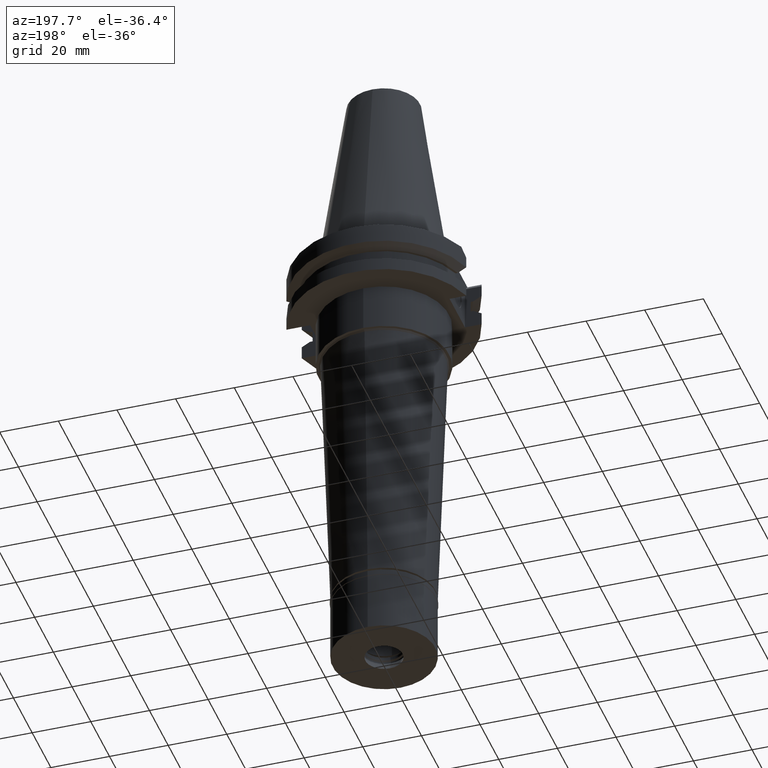
[diagram: clean part render]
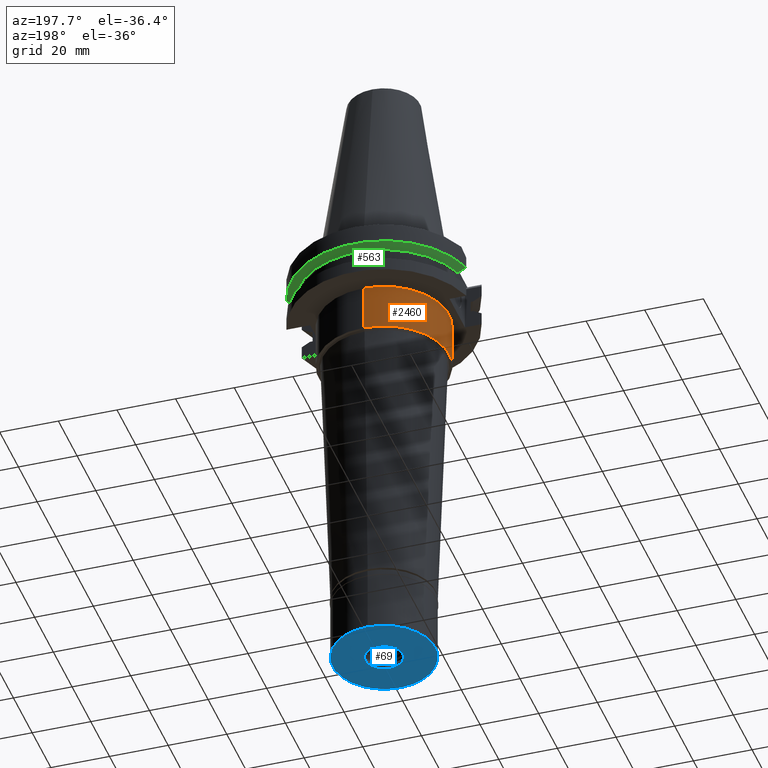
[diagram: same view with three faces highlighted in distinct colors, each labeled with its STEP entity id]
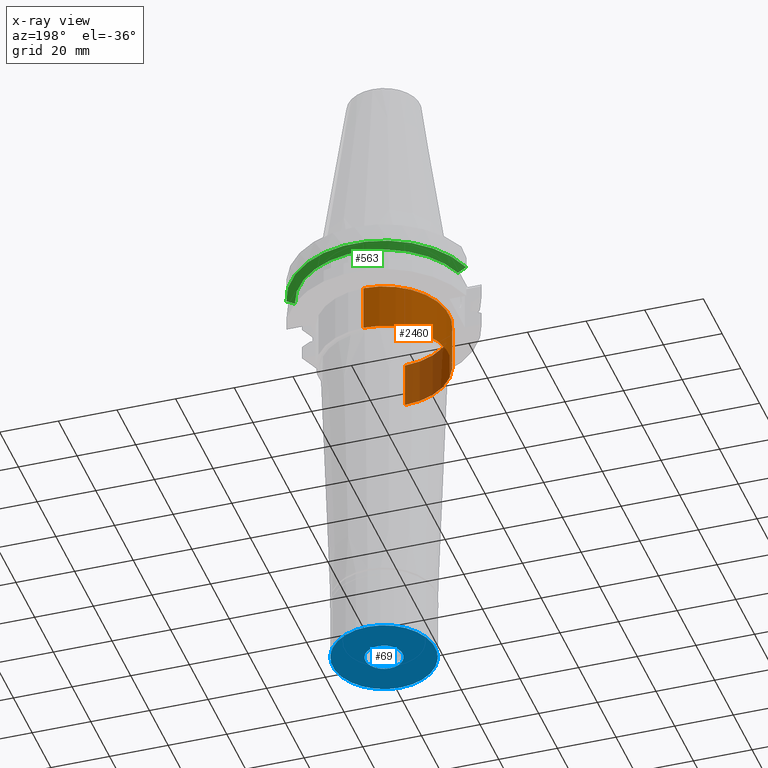
[diagram: x-ray of the same camera — body ghosted, the three highlighted faces saturated]
A machine part, auxiliary view with three faces highlighted in distinct colors.
The next image is the same camera in x-ray (body ghosted, the three faces saturated) — at least one of them is partly hidden behind the body in this view.
Their STEP definitions:

[orange] entity #2460 — the highlighted cylindrical surface (partial cylindrical patch) has radius 22.225 mm, axis along (0, 0, -1).
#256 = CIRCLE ( 'NONE', #3361, 22.22500000000000142 ) ;
#300 = AXIS2_PLACEMENT_3D ( 'NONE', #2525, #2227, #1718 ) ;
#408 = ORIENTED_EDGE ( 'NONE', *, *, #1648, .T. ) ;
#440 = LINE ( 'NONE', #1746, #746 ) ;
#492 = VERTEX_POINT ( 'NONE', #1219 ) ;
#582 = CIRCLE ( 'NONE', #300, 22.22500000000000142 ) ;
#593 = DIRECTION ( 'NONE',  ( 0.0000000000000000000, -1.000000000000000000, 0.0000000000000000000 ) ) ;
#596 = DIRECTION ( 'NONE',  ( 0.0000000000000000000, 1.000000000000000000, 0.0000000000000000000 ) ) ;
#726 = DIRECTION ( 'NONE',  ( 0.0000000000000000000, 0.0000000000000000000, -1.000000000000000000 ) ) ;
#746 = VECTOR ( 'NONE', #1485, 1000.000000000000000 ) ;
#850 = DIRECTION ( 'NONE',  ( 0.0000000000000000000, 0.0000000000000000000, 1.000000000000000000 ) ) ;
#897 = CARTESIAN_POINT ( 'NONE',  ( 0.0000000000000000000, 22.22500000000000142, -35.00000000000000000 ) ) ;
#984 = ORIENTED_EDGE ( 'NONE', *, *, #2041, .T. ) ;
#1120 = CARTESIAN_POINT ( 'NONE',  ( 0.0000000000000000000, 22.22500000000000142, -19.05000000000000071 ) ) ;
#1121 = EDGE_CURVE ( 'NONE', #1448, #2527, #582, .T. ) ;
#1219 = CARTESIAN_POINT ( 'NONE',  ( 0.0000000000000000000, -22.22500000000000142, -35.00000000000000000 ) ) ;
#1356 = VECTOR ( 'NONE', #726, 1000.000000000000000 ) ;
#1448 = VERTEX_POINT ( 'NONE', #1923 ) ;
#1485 = DIRECTION ( 'NONE',  ( 0.0000000000000000000, 0.0000000000000000000, -1.000000000000000000 ) ) ;
#1493 = LINE ( 'NONE', #3041, #1356 ) ;
#1539 = EDGE_LOOP ( 'NONE', ( #984, #2956, #2772, #408 ) ) ;
#1648 = EDGE_CURVE ( 'NONE', #2527, #2294, #440, .T. ) ;
#1692 = CARTESIAN_POINT ( 'NONE',  ( 0.0000000000000000000, 2.191474830903999739E-14, 78.94750000000000512 ) ) ;
#1718 = DIRECTION ( 'NONE',  ( 0.0000000000000000000, -1.000000000000000000, 0.0000000000000000000 ) ) ;
#1746 = CARTESIAN_POINT ( 'NONE',  ( 0.0000000000000000000, 22.22500000000000142, -19.05000000000000071 ) ) ;
#1923 = CARTESIAN_POINT ( 'NONE',  ( 0.0000000000000000000, -22.22500000000000142, -19.05000000000000071 ) ) ;
#2041 = EDGE_CURVE ( 'NONE', #2294, #492, #256, .T. ) ;
#2227 = DIRECTION ( 'NONE',  ( 0.0000000000000000000, 0.0000000000000000000, -1.000000000000000000 ) ) ;
#2294 = VERTEX_POINT ( 'NONE', #897 ) ;
#2426 = CARTESIAN_POINT ( 'NONE',  ( 0.0000000000000000000, 2.191474830903999739E-14, -35.00000000000000000 ) ) ;
#2460 = ADVANCED_FACE ( 'NONE', ( #2903 ), #2688, .T. ) ;
#2525 = CARTESIAN_POINT ( 'NONE',  ( 0.0000000000000000000, 2.191474830903999739E-14, -19.05000000000000071 ) ) ;
#2527 = VERTEX_POINT ( 'NONE', #1120 ) ;
#2678 = EDGE_CURVE ( 'NONE', #1448, #492, #1493, .T. ) ;
#2688 = CYLINDRICAL_SURFACE ( 'NONE', #2967, 22.22500000000000142 ) ;
#2772 = ORIENTED_EDGE ( 'NONE', *, *, #1121, .T. ) ;
#2903 = FACE_OUTER_BOUND ( 'NONE', #1539, .T. ) ;
#2956 = ORIENTED_EDGE ( 'NONE', *, *, #2678, .F. ) ;
#2958 = DIRECTION ( 'NONE',  ( 0.0000000000000000000, 0.0000000000000000000, -1.000000000000000000 ) ) ;
#2967 = AXIS2_PLACEMENT_3D ( 'NONE', #1692, #2958, #593 ) ;
#3041 = CARTESIAN_POINT ( 'NONE',  ( 0.0000000000000000000, -22.22500000000000142, -19.05000000000000071 ) ) ;
#3361 = AXIS2_PLACEMENT_3D ( 'NONE', #2426, #850, #596 ) ;

[blue] entity #69 — the highlighted planar face has unit normal (0, 0, -1).
#69 = ADVANCED_FACE ( 'NONE', ( #2020, #3035 ), #2775, .T. ) ;
#159 = CARTESIAN_POINT ( 'NONE',  ( 0.0000000000000000000, 0.0000000000000000000, -22.50000000000000000 ) ) ;
#274 = ORIENTED_EDGE ( 'NONE', *, *, #2622, .F. ) ;
#280 = VERTEX_POINT ( 'NONE', #2906 ) ;
#310 = EDGE_CURVE ( 'NONE', #3329, #1396, #2577, .T. ) ;
#405 = DIRECTION ( 'NONE',  ( 0.0000000000000000000, -1.000000000000000000, 0.0000000000000000000 ) ) ;
#424 = CIRCLE ( 'NONE', #1078, 17.50000000000000000 ) ;
#489 = ORIENTED_EDGE ( 'NONE', *, *, #2243, .F. ) ;
#544 = DIRECTION ( 'NONE',  ( 0.0000000000000000000, -1.000000000000000000, 0.0000000000000000000 ) ) ;
#719 = CARTESIAN_POINT ( 'NONE',  ( 0.0000000000000000000, 0.0000000000000000000, -22.50000000000000000 ) ) ;
#788 = CARTESIAN_POINT ( 'NONE',  ( 0.0000000000000000000, 6.349999999998999556, -22.50000000000000000 ) ) ;
#812 = AXIS2_PLACEMENT_3D ( 'NONE', #2330, #3096, #1051 ) ;
#838 = CARTESIAN_POINT ( 'NONE',  ( 0.0000000000000000000, -17.50000000000000000, -22.50000000000000000 ) ) ;
#851 = AXIS2_PLACEMENT_3D ( 'NONE', #719, #3319, #544 ) ;
#967 = CIRCLE ( 'NONE', #812, 17.50000000000000000 ) ;
#1027 = CARTESIAN_POINT ( 'NONE',  ( 0.0000000000000000000, -6.349999999998999556, -22.50000000000000000 ) ) ;
#1051 = DIRECTION ( 'NONE',  ( 0.0000000000000000000, -1.000000000000000000, 0.0000000000000000000 ) ) ;
#1078 = AXIS2_PLACEMENT_3D ( 'NONE', #159, #1993, #3022 ) ;
#1177 = EDGE_CURVE ( 'NONE', #1396, #3329, #2687, .T. ) ;
#1182 = DIRECTION ( 'NONE',  ( 0.0000000000000000000, 0.0000000000000000000, -1.000000000000000000 ) ) ;
#1373 = CARTESIAN_POINT ( 'NONE',  ( 0.0000000000000000000, 0.0000000000000000000, -22.50000000000000000 ) ) ;
#1396 = VERTEX_POINT ( 'NONE', #1027 ) ;
#1586 = EDGE_LOOP ( 'NONE', ( #274, #489 ) ) ;
#1993 = DIRECTION ( 'NONE',  ( 0.0000000000000000000, 0.0000000000000000000, 1.000000000000000000 ) ) ;
#2020 = FACE_OUTER_BOUND ( 'NONE', #1586, .T. ) ;
#2035 = VERTEX_POINT ( 'NONE', #838 ) ;
#2243 = EDGE_CURVE ( 'NONE', #2035, #280, #967, .T. ) ;
#2284 = ORIENTED_EDGE ( 'NONE', *, *, #1177, .F. ) ;
#2316 = EDGE_LOOP ( 'NONE', ( #2922, #2284 ) ) ;
#2330 = CARTESIAN_POINT ( 'NONE',  ( 0.0000000000000000000, 0.0000000000000000000, -22.50000000000000000 ) ) ;
#2409 = DIRECTION ( 'NONE',  ( 0.0000000000000000000, 1.000000000000000000, 0.0000000000000000000 ) ) ;
#2577 = CIRCLE ( 'NONE', #3285, 6.349999999998999556 ) ;
#2622 = EDGE_CURVE ( 'NONE', #280, #2035, #424, .T. ) ;
#2634 = AXIS2_PLACEMENT_3D ( 'NONE', #3002, #1182, #405 ) ;
#2659 = DIRECTION ( 'NONE',  ( 0.0000000000000000000, 0.0000000000000000000, -1.000000000000000000 ) ) ;
#2687 = CIRCLE ( 'NONE', #2634, 6.349999999998999556 ) ;
#2775 = PLANE ( 'NONE',  #851 ) ;
#2906 = CARTESIAN_POINT ( 'NONE',  ( 0.0000000000000000000, 17.50000000000000000, -22.50000000000000000 ) ) ;
#2922 = ORIENTED_EDGE ( 'NONE', *, *, #310, .F. ) ;
#3002 = CARTESIAN_POINT ( 'NONE',  ( 0.0000000000000000000, 0.0000000000000000000, -22.50000000000000000 ) ) ;
#3022 = DIRECTION ( 'NONE',  ( 0.0000000000000000000, 1.000000000000000000, 0.0000000000000000000 ) ) ;
#3035 = FACE_BOUND ( 'NONE', #2316, .T. ) ;
#3096 = DIRECTION ( 'NONE',  ( 0.0000000000000000000, 0.0000000000000000000, 1.000000000000000000 ) ) ;
#3285 = AXIS2_PLACEMENT_3D ( 'NONE', #1373, #2659, #2409 ) ;
#3319 = DIRECTION ( 'NONE',  ( 0.0000000000000000000, 0.0000000000000000000, -1.000000000000000000 ) ) ;
#3329 = VERTEX_POINT ( 'NONE', #788 ) ;

[green] entity #563 — the highlighted conical surface has half-angle 60 deg.
#1 = CARTESIAN_POINT ( 'NONE',  ( -27.79398348482000003, 8.190000189175000500, -9.210000000000999165 ) ) ;
#13 = DIRECTION ( 'NONE',  ( 0.0000000000000000000, 0.0000000000000000000, 1.000000000000000000 ) ) ;
#197 = EDGE_CURVE ( 'NONE', #3266, #1259, #540, .T. ) ;
#240 = EDGE_CURVE ( 'NONE', #1516, #1259, #515, .T. ) ;
#268 = CARTESIAN_POINT ( 'NONE',  ( -28.71170642078588386, 8.190000378777559931, -8.701759819570268562 ) ) ;
#355 = CARTESIAN_POINT ( 'NONE',  ( 30.67550165918999738, 8.189999875296001264, -7.608164472358999397 ) ) ;
#392 = CARTESIAN_POINT ( 'NONE',  ( -30.67550146538999911, 8.190000601148000214, -7.608157985709000037 ) ) ;
#515 = CIRCLE ( 'NONE', #2738, 31.74999999999998579 ) ;
#519 = ORIENTED_EDGE ( 'NONE', *, *, #240, .F. ) ;
#540 = B_SPLINE_CURVE_WITH_KNOTS ( 'NONE', 3,
 ( #2573, #268, #2363, #2643 ),
 .UNSPECIFIED., .F., .F.,
 ( 4, 4 ),
 ( 0.0000000000000000000, 1.000000000000000000 ),
 .UNSPECIFIED. ) ;
#563 = ADVANCED_FACE ( 'NONE', ( #2359 ), #1565, .T. ) ;
#612 = CARTESIAN_POINT ( 'NONE',  ( 0.0000000000000000000, 1.121665249527999917E-14, -7.608163357944999206 ) ) ;
#1024 = CIRCLE ( 'NONE', #2904, 28.97553755052999946 ) ;
#1259 = VERTEX_POINT ( 'NONE', #392 ) ;
#1331 = CARTESIAN_POINT ( 'NONE',  ( 27.79399588427999745, 8.189999365899998551, -9.210000000000999165 ) ) ;
#1457 = EDGE_LOOP ( 'NONE', ( #2517, #2791, #3218, #519 ) ) ;
#1516 = VERTEX_POINT ( 'NONE', #355 ) ;
#1565 = CONICAL_SURFACE ( 'NONE', #2061, 30.36276877526999840, 1.047197551196400456 ) ;
#1569 = B_SPLINE_CURVE_WITH_KNOTS ( 'NONE', 3,
 ( #2588, #2117, #2299, #1331 ),
 .UNSPECIFIED., .F., .F.,
 ( 4, 4 ),
 ( 0.0000000000000000000, 1.000000000000000000 ),
 .UNSPECIFIED. ) ;
#1884 = EDGE_CURVE ( 'NONE', #2630, #3266, #1024, .T. ) ;
#2061 = AXIS2_PLACEMENT_3D ( 'NONE', #2848, #2620, #2802 ) ;
#2117 = CARTESIAN_POINT ( 'NONE',  ( 29.67220411597960350, 8.189999750685567292, -8.167814094916428402 ) ) ;
#2142 = EDGE_CURVE ( 'NONE', #1516, #2630, #1569, .T. ) ;
#2152 = DIRECTION ( 'NONE',  ( 0.9661575315241073270, 0.2579527559055020958, 0.0000000000000000000 ) ) ;
#2258 = CARTESIAN_POINT ( 'NONE',  ( 27.79399588427999745, 8.189999365899998551, -9.210000000000999165 ) ) ;
#2299 = CARTESIAN_POINT ( 'NONE',  ( 28.71170969509163839, 8.189998730403164728, -8.701758253036681268 ) ) ;
#2353 = CARTESIAN_POINT ( 'NONE',  ( 0.0000000000000000000, 1.121665249527999917E-14, -9.210000000002999343 ) ) ;
#2359 = FACE_OUTER_BOUND ( 'NONE', #1457, .T. ) ;
#2363 = CARTESIAN_POINT ( 'NONE',  ( -29.67220490029862034, 8.190001201864017588, -8.167813437756086259 ) ) ;
#2517 = ORIENTED_EDGE ( 'NONE', *, *, #2142, .T. ) ;
#2573 = CARTESIAN_POINT ( 'NONE',  ( -27.79398348482000003, 8.190000189175000500, -9.210000000000999165 ) ) ;
#2588 = CARTESIAN_POINT ( 'NONE',  ( 30.67550165918999738, 8.189999875296001264, -7.608164472358999397 ) ) ;
#2620 = DIRECTION ( 'NONE',  ( 0.0000000000000000000, 0.0000000000000000000, 1.000000000000000000 ) ) ;
#2630 = VERTEX_POINT ( 'NONE', #2258 ) ;
#2643 = CARTESIAN_POINT ( 'NONE',  ( -30.67550146538999911, 8.190000601148000214, -7.608157985709000037 ) ) ;
#2738 = AXIS2_PLACEMENT_3D ( 'NONE', #612, #2983, #2152 ) ;
#2776 = DIRECTION ( 'NONE',  ( 0.0000000000000000000, 1.000000000000000000, 0.0000000000000000000 ) ) ;
#2791 = ORIENTED_EDGE ( 'NONE', *, *, #1884, .T. ) ;
#2802 = DIRECTION ( 'NONE',  ( 0.0000000000000000000, 1.000000000000000000, 0.0000000000000000000 ) ) ;
#2848 = CARTESIAN_POINT ( 'NONE',  ( 0.0000000000000000000, 1.121665249527999917E-14, -8.409081678974001051 ) ) ;
#2904 = AXIS2_PLACEMENT_3D ( 'NONE', #2353, #13, #2776 ) ;
#2983 = DIRECTION ( 'NONE',  ( 0.0000000000000000000, 0.0000000000000000000, 1.000000000000000000 ) ) ;
#3218 = ORIENTED_EDGE ( 'NONE', *, *, #197, .T. ) ;
#3266 = VERTEX_POINT ( 'NONE', #1 ) ;